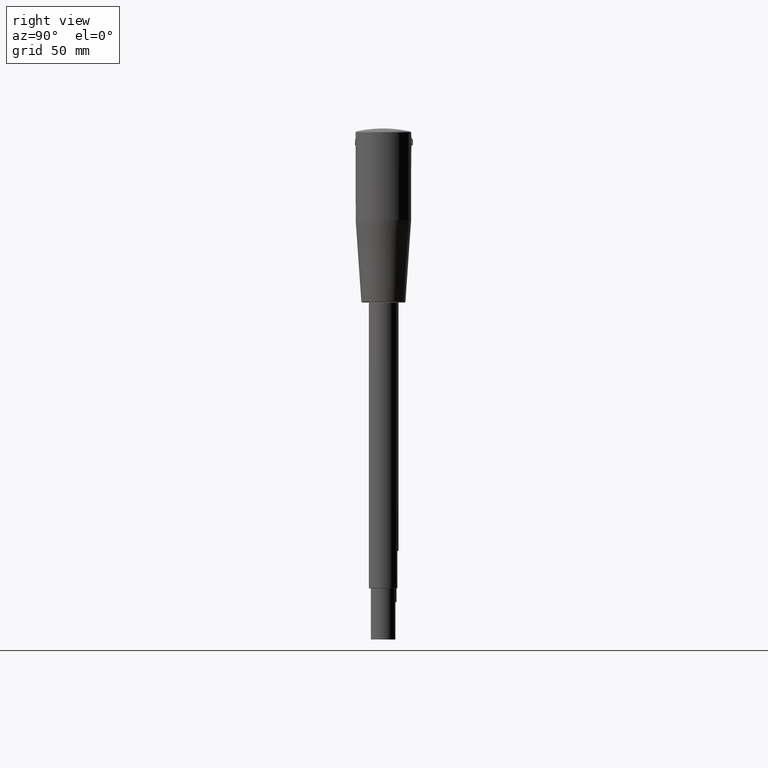
[diagram: clean part render]
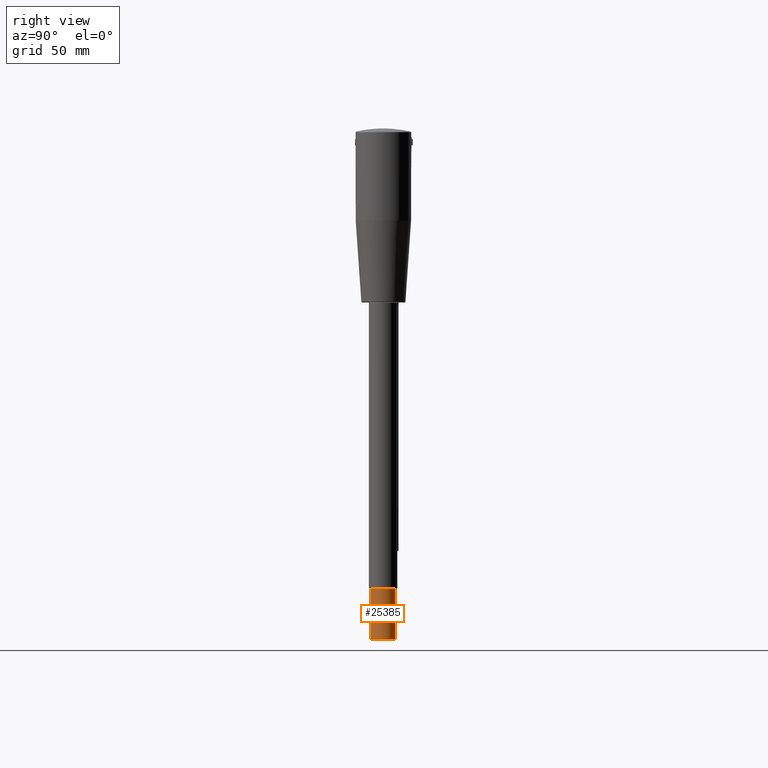
[diagram: same view with one face highlighted and labeled with its STEP entity id]
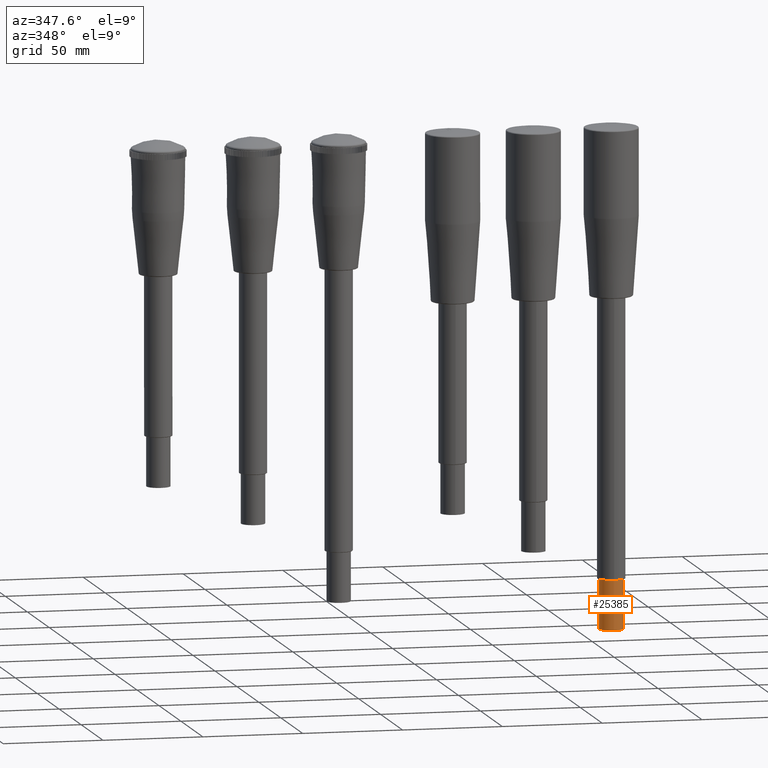
[diagram: same view with one face highlighted and labeled with its STEP entity id]
A machine part, right view. The second image highlights one B-rep face of the part: STEP entity #25385.
A second angle (auxiliary view) of the same face is appended — the face is thin or edge-on in the first view.
In plain terms, the highlighted cylindrical surface (bore or boss wall) has radius 6 mm, axis along (-0, 0, 1).
Its self-contained STEP definition (entity closure, byte-faithful):
#294=FACE_BOUND('',#3667,.T.);
#2252=FACE_OUTER_BOUND('',#3666,.T.);
#3666=EDGE_LOOP('',(#23433));
#3667=EDGE_LOOP('',(#23434));
#4973=CIRCLE('',#28039,6.);
#4974=CIRCLE('',#28041,6.);
#12284=VERTEX_POINT('',#43924);
#12285=VERTEX_POINT('',#43927);
#16001=EDGE_CURVE('',#12284,#12284,#4973,.T.);
#16002=EDGE_CURVE('',#12285,#12285,#4974,.T.);
#23433=ORIENTED_EDGE('',*,*,#16002,.T.);
#23434=ORIENTED_EDGE('',*,*,#16001,.F.);
#24063=CYLINDRICAL_SURFACE('',#28042,6.);
#25385=ADVANCED_FACE('',(#2252,#294),#24063,.T.);
#28039=AXIS2_PLACEMENT_3D('',#43925,#35734,#35735);
#28041=AXIS2_PLACEMENT_3D('',#43928,#35738,#35739);
#28042=AXIS2_PLACEMENT_3D('',#43929,#35740,#35741);
#35734=DIRECTION('center_axis',(1.,0.,0.));
#35735=DIRECTION('ref_axis',(0.,0.,-1.));
#35738=DIRECTION('center_axis',(1.,0.,0.));
#35739=DIRECTION('ref_axis',(0.,0.,-1.));
#35740=DIRECTION('center_axis',(1.,0.,0.));
#35741=DIRECTION('ref_axis',(0.,1.,0.));
#43924=CARTESIAN_POINT('',(25.,6.,0.));
#43925=CARTESIAN_POINT('Origin',(25.,0.,0.));
#43927=CARTESIAN_POINT('',(0.,6.,0.));
#43928=CARTESIAN_POINT('Origin',(0.,0.,0.));
#43929=CARTESIAN_POINT('Origin',(12.5,0.,0.));